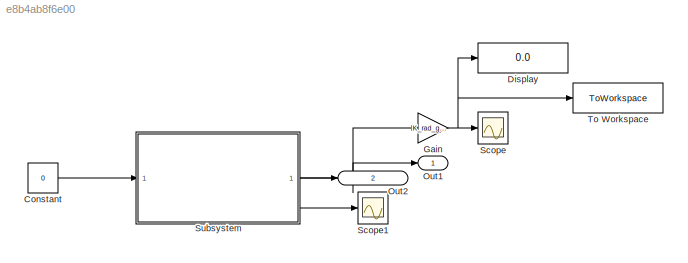
MODEL slx_e8b4ab8f6e00
KIND model
CONFIG AbsTol = auto
CONFIG EnableMultiTasking = off
CONFIG FixedStep = auto
CONFIG MaxStep = auto
CONFIG MinStep = auto
CONFIG RelTol = 1e-3
CONFIG SampleTimeConstraint = Unconstrained
CONFIG SolverName = VariableStepAuto
CONFIG StartTime = 0.0
CONFIG StopTime = 300
BLOCK [Constant] Constant
  Value = 0
BLOCK [Display] Display
  Decimation = 1
BLOCK [Gain] Gain
  Gain = K_rad_grados
BLOCK [Outport] Out1
  IconDisplay = Signal name
  SignalName = Theta
BLOCK [Outport] Out2
  IconDisplay = Signal name
  Port = 2
  SignalName = Theta_Prima
BLOCK [Scope] Scope
  Floating = off
  NumInputPorts = 1
  ScopeSpecificationString = Simulink.scopes.TimeScopeBlockCfg('CurrentConfiguration', extmgr.ConfigurationSet(extmgr.Configuration('Core','General UI',true,'DisplayFullSourceName',false,'ShowMainToolbar',true,'FigureColor',[0.129411764705882 0.129411764705882 0.129411764705882]),extmgr.Configuration('Sources','WiredSimulink',true,'DataLogging',false,'DataLoggingVariableName','ScopeData','DataLoggingLimitDataPoints',false,'Da...<+2253ch>
BLOCK [Scope] Scope1
  Floating = off
  NumInputPorts = 1
  ScopeSpecificationString = Simulink.scopes.TimeScopeBlockCfg('CurrentConfiguration', extmgr.ConfigurationSet(extmgr.Configuration('Core','General UI',true,'DisplayFullSourceName',false,'ShowMainToolbar',true,'FigureColor',[0.129411764705882 0.129411764705882 0.129411764705882]),extmgr.Configuration('Sources','WiredSimulink',true,'DataLogging',false,'DataLoggingVariableName','ScopeData1','DataLoggingLimitDataPoints',false,'D...<+2264ch>
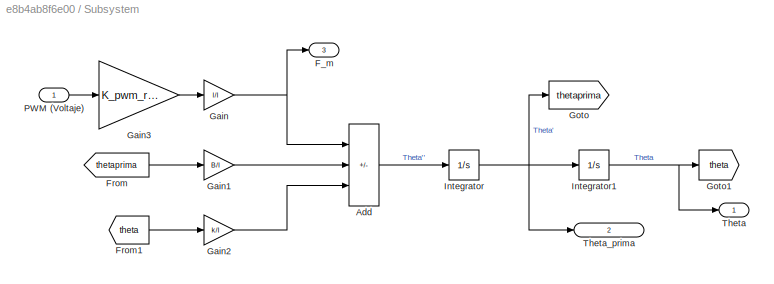
BLOCK [SubSystem] Subsystem
BLOCK [Sum] Subsystem/Add
  IconShape = rectangular
  Inputs = +--
BLOCK [Outport] Subsystem/F_m
  Port = 3
BLOCK [From] Subsystem/From
  GotoTag = thetaprima
BLOCK [From] Subsystem/From1
  GotoTag = theta
BLOCK [Gain] Subsystem/Gain
  Gain = l/I
BLOCK [Gain] Subsystem/Gain1
  Gain = B/I
BLOCK [Gain] Subsystem/Gain2
  Gain = k/I
BLOCK [Gain] Subsystem/Gain3
  Gain = K_pwm_rad
BLOCK [Goto] Subsystem/Goto
  GotoTag = thetaprima
BLOCK [Goto] Subsystem/Goto1
  GotoTag = theta
BLOCK [Integrator] Subsystem/Integrator
BLOCK [Integrator] Subsystem/Integrator1
  InitialCondition = angulo_inicial
BLOCK [Inport] Subsystem/PWM (Voltaje)
  IconDisplay = Signal name
BLOCK [Outport] Subsystem/Theta
BLOCK [Outport] Subsystem/Theta_prima
  Port = 2
BLOCK [ToWorkspace] To Workspace
  FixptAsFi = on
  MaxDataPoints = inf
  SampleTime = -1
  SaveFormat = Timeseries
  VariableName = simout
LINE Constant:1 -> Subsystem:1
NET Gain:1 -> Display:1, Scope:1, To Workspace:1
LINE Subsystem/Add:1 -> Subsystem/Integrator:1
LINE Subsystem/From1:1 -> Subsystem/Gain2:1
LINE Subsystem/From:1 -> Subsystem/Gain1:1
LINE Subsystem/Gain1:1 -> Subsystem/Add:2
LINE Subsystem/Gain2:1 -> Subsystem/Add:3
LINE Subsystem/Gain3:1 -> Subsystem/Gain:1
NET Subsystem/Gain:1 -> Subsystem/Add:1, Subsystem/F_m:1
NET Subsystem/Integrator1:1 -> Subsystem/Goto1:1, Subsystem/Theta:1
NET Subsystem/Integrator:1 -> Subsystem/Goto:1, Subsystem/Integrator1:1, Subsystem/Theta_prima:1
LINE Subsystem/PWM (Voltaje):1 -> Subsystem/Gain3:1
NET Subsystem:1 -> Gain:1, Out1:1
LINE Subsystem:2 -> Out2:1
LINE Subsystem:3 -> Scope1:1
note: NET lines group one-source signal fan-out (src -> all destinations, sorted); 1:1 wires keep LINE
